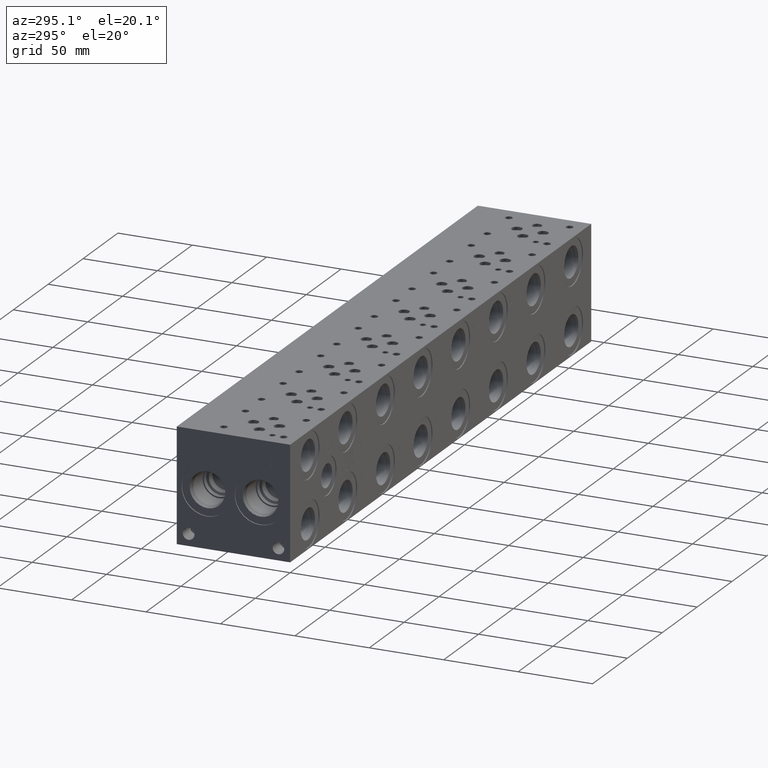
[diagram: clean part render]
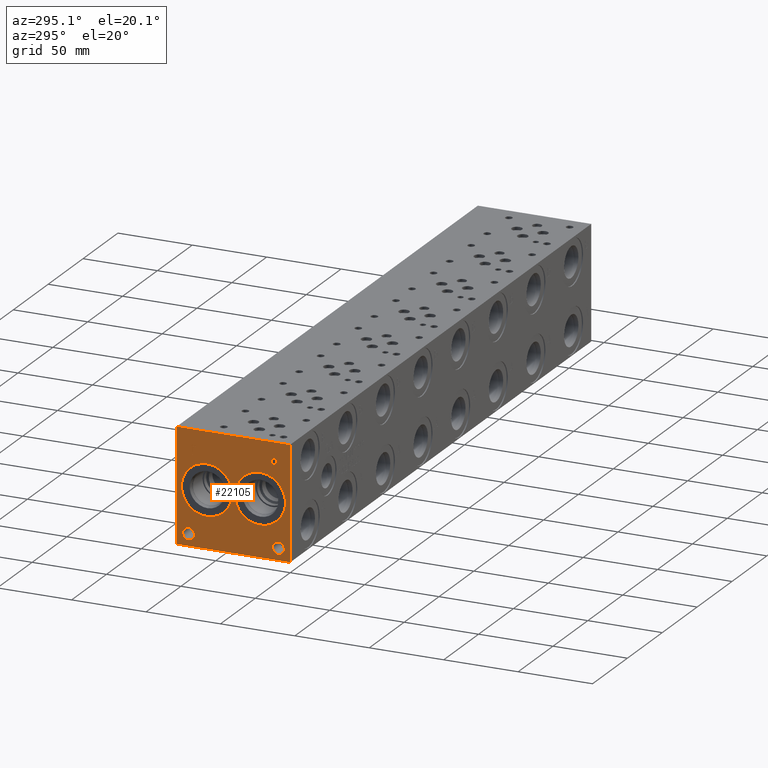
[diagram: same view with one face highlighted and labeled with its STEP entity id]
A machine part, auxiliary view. The second image highlights one B-rep face of the part: STEP entity #22105.
In plain terms, the highlighted planar face has unit normal (-1, 0, 0).
Its self-contained STEP definition (entity closure, byte-faithful):
#433=CIRCLE('',#23092,17.0688);
#434=CIRCLE('',#23093,17.0688);
#435=CIRCLE('',#23094,17.0688);
#436=CIRCLE('',#23095,17.0688);
#437=CIRCLE('',#23096,3.9624);
#438=CIRCLE('',#23097,3.9624);
#439=CIRCLE('',#23098,3.9624);
#440=CIRCLE('',#23099,3.9624);
#1301=FACE_BOUND('',#4005,.T.);
#1302=FACE_BOUND('',#4006,.T.);
#1303=FACE_BOUND('',#4007,.T.);
#1304=FACE_BOUND('',#4008,.T.);
#1305=FACE_BOUND('',#4009,.T.);
#1306=FACE_BOUND('',#4010,.T.);
#1916=PLANE('',#23091);
#2724=FACE_OUTER_BOUND('',#4004,.T.);
#4004=EDGE_LOOP('',(#18015,#18016,#18017,#18018));
#4005=EDGE_LOOP('',(#18019,#18020));
#4006=EDGE_LOOP('',(#18021,#18022));
#4007=EDGE_LOOP('',(#18023,#18024));
#4008=EDGE_LOOP('',(#18025,#18026));
#4009=EDGE_LOOP('',(#18027,#18028,#18029,#18030,#18031,#18032,#18033,#18034));
#4010=EDGE_LOOP('',(#18035,#18036,#18037,#18038,#18039,#18040,#18041,#18042,
#18043));
#4678=LINE('',#29986,#6501);
#6032=LINE('',#36913,#7855);
#6035=LINE('',#36919,#7858);
#6038=LINE('',#36925,#7861);
#6041=LINE('',#36931,#7864);
#6044=LINE('',#36937,#7867);
#6048=LINE('',#36979,#7871);
#6049=LINE('',#36981,#7872);
#6050=LINE('',#36982,#7873);
#6051=LINE('',#37001,#7874);
#6052=LINE('',#37003,#7875);
#6053=LINE('',#37005,#7876);
#6054=LINE('',#37007,#7877);
#6055=LINE('',#37009,#7878);
#6056=LINE('',#37011,#7879);
#6057=LINE('',#37013,#7880);
#6058=LINE('',#37014,#7881);
#6501=VECTOR('',#24408,10.);
#7855=VECTOR('',#26730,10.);
#7858=VECTOR('',#26735,10.);
#7861=VECTOR('',#26740,10.);
#7864=VECTOR('',#26745,10.);
#7867=VECTOR('',#26750,10.);
#7871=VECTOR('',#26758,10.);
#7872=VECTOR('',#26759,10.);
#7873=VECTOR('',#26760,10.);
#7874=VECTOR('',#26777,10.);
#7875=VECTOR('',#26778,10.);
#7876=VECTOR('',#26779,10.);
#7877=VECTOR('',#26780,10.);
#7878=VECTOR('',#26781,10.);
#7879=VECTOR('',#26782,10.);
#7880=VECTOR('',#26783,10.);
#7881=VECTOR('',#26784,10.);
#8779=B_SPLINE_CURVE_WITH_KNOTS('',2,(#36880,#36881,#36882,#36883),
 .UNSPECIFIED.,.F.,.F.,(3,1,3),(0.,1.,2.),.UNSPECIFIED.);
#8781=B_SPLINE_CURVE_WITH_KNOTS('',2,(#36901,#36902,#36903,#36904),
 .UNSPECIFIED.,.F.,.F.,(3,1,3),(0.,1.,2.),.UNSPECIFIED.);
#8783=B_SPLINE_CURVE_WITH_KNOTS('',2,(#36950,#36951,#36952,#36953),
 .UNSPECIFIED.,.F.,.F.,(3,1,3),(0.,1.,2.),.UNSPECIFIED.);
#8785=B_SPLINE_CURVE_WITH_KNOTS('',2,(#36968,#36969,#36970,#36971),
 .UNSPECIFIED.,.F.,.F.,(3,1,3),(0.,1.,2.),.UNSPECIFIED.);
#8835=VERTEX_POINT('',#29979);
#8838=VERTEX_POINT('',#29984);
#10097=VERTEX_POINT('',#36878);
#10098=VERTEX_POINT('',#36879);
#10101=VERTEX_POINT('',#36900);
#10103=VERTEX_POINT('',#36912);
#10105=VERTEX_POINT('',#36918);
#10107=VERTEX_POINT('',#36924);
#10109=VERTEX_POINT('',#36930);
#10111=VERTEX_POINT('',#36936);
#10113=VERTEX_POINT('',#36949);
#10115=VERTEX_POINT('',#36978);
#10116=VERTEX_POINT('',#36980);
#10117=VERTEX_POINT('',#36983);
#10118=VERTEX_POINT('',#36984);
#10119=VERTEX_POINT('',#36987);
#10120=VERTEX_POINT('',#36988);
#10121=VERTEX_POINT('',#36991);
#10122=VERTEX_POINT('',#36992);
#10123=VERTEX_POINT('',#36995);
#10124=VERTEX_POINT('',#36996);
#10125=VERTEX_POINT('',#36999);
#10126=VERTEX_POINT('',#37000);
#10127=VERTEX_POINT('',#37002);
#10128=VERTEX_POINT('',#37004);
#10129=VERTEX_POINT('',#37006);
#10130=VERTEX_POINT('',#37008);
#10131=VERTEX_POINT('',#37010);
#10132=VERTEX_POINT('',#37012);
#11078=EDGE_CURVE('',#8835,#8838,#4678,.T.);
#12945=EDGE_CURVE('',#10097,#10098,#8779,.T.);
#12949=EDGE_CURVE('',#10101,#10097,#8781,.T.);
#12952=EDGE_CURVE('',#10103,#10101,#6032,.T.);
#12955=EDGE_CURVE('',#10105,#10103,#6035,.T.);
#12958=EDGE_CURVE('',#10107,#10105,#6038,.T.);
#12961=EDGE_CURVE('',#10109,#10107,#6041,.T.);
#12964=EDGE_CURVE('',#10111,#10109,#6044,.T.);
#12967=EDGE_CURVE('',#10113,#10111,#8783,.T.);
#12970=EDGE_CURVE('',#10098,#10113,#8785,.T.);
#12972=EDGE_CURVE('',#10115,#8835,#6048,.T.);
#12973=EDGE_CURVE('',#10116,#8838,#6049,.T.);
#12974=EDGE_CURVE('',#10115,#10116,#6050,.T.);
#12975=EDGE_CURVE('',#10117,#10118,#433,.T.);
#12976=EDGE_CURVE('',#10118,#10117,#434,.T.);
#12977=EDGE_CURVE('',#10119,#10120,#435,.T.);
#12978=EDGE_CURVE('',#10120,#10119,#436,.T.);
#12979=EDGE_CURVE('',#10121,#10122,#437,.T.);
#12980=EDGE_CURVE('',#10122,#10121,#438,.T.);
#12981=EDGE_CURVE('',#10123,#10124,#439,.T.);
#12982=EDGE_CURVE('',#10124,#10123,#440,.T.);
#12983=EDGE_CURVE('',#10125,#10126,#6051,.T.);
#12984=EDGE_CURVE('',#10126,#10127,#6052,.T.);
#12985=EDGE_CURVE('',#10127,#10128,#6053,.T.);
#12986=EDGE_CURVE('',#10128,#10129,#6054,.T.);
#12987=EDGE_CURVE('',#10129,#10130,#6055,.T.);
#12988=EDGE_CURVE('',#10130,#10131,#6056,.T.);
#12989=EDGE_CURVE('',#10131,#10132,#6057,.T.);
#12990=EDGE_CURVE('',#10132,#10125,#6058,.T.);
#18015=ORIENTED_EDGE('',*,*,#12972,.T.);
#18016=ORIENTED_EDGE('',*,*,#11078,.T.);
#18017=ORIENTED_EDGE('',*,*,#12973,.F.);
#18018=ORIENTED_EDGE('',*,*,#12974,.F.);
#18019=ORIENTED_EDGE('',*,*,#12975,.T.);
#18020=ORIENTED_EDGE('',*,*,#12976,.T.);
#18021=ORIENTED_EDGE('',*,*,#12977,.T.);
#18022=ORIENTED_EDGE('',*,*,#12978,.T.);
#18023=ORIENTED_EDGE('',*,*,#12979,.T.);
#18024=ORIENTED_EDGE('',*,*,#12980,.T.);
#18025=ORIENTED_EDGE('',*,*,#12981,.T.);
#18026=ORIENTED_EDGE('',*,*,#12982,.T.);
#18027=ORIENTED_EDGE('',*,*,#12983,.T.);
#18028=ORIENTED_EDGE('',*,*,#12984,.T.);
#18029=ORIENTED_EDGE('',*,*,#12985,.T.);
#18030=ORIENTED_EDGE('',*,*,#12986,.T.);
#18031=ORIENTED_EDGE('',*,*,#12987,.T.);
#18032=ORIENTED_EDGE('',*,*,#12988,.T.);
#18033=ORIENTED_EDGE('',*,*,#12989,.T.);
#18034=ORIENTED_EDGE('',*,*,#12990,.T.);
#18035=ORIENTED_EDGE('',*,*,#12945,.T.);
#18036=ORIENTED_EDGE('',*,*,#12970,.T.);
#18037=ORIENTED_EDGE('',*,*,#12967,.T.);
#18038=ORIENTED_EDGE('',*,*,#12964,.T.);
#18039=ORIENTED_EDGE('',*,*,#12961,.T.);
#18040=ORIENTED_EDGE('',*,*,#12958,.T.);
#18041=ORIENTED_EDGE('',*,*,#12955,.T.);
#18042=ORIENTED_EDGE('',*,*,#12952,.T.);
#18043=ORIENTED_EDGE('',*,*,#12949,.T.);
#22105=ADVANCED_FACE('',(#2724,#1301,#1302,#1303,#1304,#1305,#1306),#1916,
 .T.);
#23091=AXIS2_PLACEMENT_3D('',#36977,#26756,#26757);
#23092=AXIS2_PLACEMENT_3D('',#36985,#26761,#26762);
#23093=AXIS2_PLACEMENT_3D('',#36986,#26763,#26764);
#23094=AXIS2_PLACEMENT_3D('',#36989,#26765,#26766);
#23095=AXIS2_PLACEMENT_3D('',#36990,#26767,#26768);
#23096=AXIS2_PLACEMENT_3D('',#36993,#26769,#26770);
#23097=AXIS2_PLACEMENT_3D('',#36994,#26771,#26772);
#23098=AXIS2_PLACEMENT_3D('',#36997,#26773,#26774);
#23099=AXIS2_PLACEMENT_3D('',#36998,#26775,#26776);
#24408=DIRECTION('',(0.,0.,1.));
#26730=DIRECTION('',(0.,-1.,0.));
#26735=DIRECTION('',(0.,-3.14708893596576E-15,1.));
#26740=DIRECTION('',(0.,1.,0.));
#26745=DIRECTION('',(0.,3.75218139805001E-15,-1.));
#26750=DIRECTION('',(0.,1.,0.));
#26756=DIRECTION('center_axis',(-1.,0.,0.));
#26757=DIRECTION('ref_axis',(0.,-1.,0.));
#26758=DIRECTION('',(0.,-1.,0.));
#26759=DIRECTION('',(0.,-1.,0.));
#26760=DIRECTION('',(0.,0.,1.));
#26761=DIRECTION('center_axis',(1.,0.,0.));
#26762=DIRECTION('ref_axis',(0.,0.,1.));
#26763=DIRECTION('center_axis',(1.,0.,0.));
#26764=DIRECTION('ref_axis',(0.,0.,1.));
#26765=DIRECTION('center_axis',(1.,0.,0.));
#26766=DIRECTION('ref_axis',(0.,0.,1.));
#26767=DIRECTION('center_axis',(1.,0.,0.));
#26768=DIRECTION('ref_axis',(0.,0.,1.));
#26769=DIRECTION('center_axis',(1.,0.,0.));
#26770=DIRECTION('ref_axis',(0.,1.,0.));
#26771=DIRECTION('center_axis',(1.,0.,0.));
#26772=DIRECTION('ref_axis',(0.,1.,0.));
#26773=DIRECTION('center_axis',(1.,0.,0.));
#26774=DIRECTION('ref_axis',(0.,1.,0.));
#26775=DIRECTION('center_axis',(1.,0.,0.));
#26776=DIRECTION('ref_axis',(0.,1.,0.));
#26777=DIRECTION('',(0.,1.,1.05244112384329E-14));
#26778=DIRECTION('',(0.,-3.17280044688052E-15,1.));
#26779=DIRECTION('',(0.,1.,4.16909044227779E-15));
#26780=DIRECTION('',(0.,0.,1.));
#26781=DIRECTION('',(0.,-1.,-3.47984565141735E-15));
#26782=DIRECTION('',(0.,0.,-1.));
#26783=DIRECTION('',(0.,1.,0.));
#26784=DIRECTION('',(0.,3.17280044688052E-15,-1.));
#29979=CARTESIAN_POINT('',(0.,0.,0.));
#29984=CARTESIAN_POINT('',(0.,0.,76.2));
#29986=CARTESIAN_POINT('',(0.,0.,0.));
#36878=CARTESIAN_POINT('',(0.,9.59318279764059,65.4850181439707));
#36879=CARTESIAN_POINT('',(0.,8.83674034546799,63.966987372604));
#36880=CARTESIAN_POINT('Ctrl Pts',(0.,9.59318279764059,65.4850181439707));
#36881=CARTESIAN_POINT('Ctrl Pts',(0.,9.23811797315141,65.2431623939564));
#36882=CARTESIAN_POINT('Ctrl Pts',(0.,8.83674034546799,64.4970116758269));
#36883=CARTESIAN_POINT('Ctrl Pts',(0.,8.83674034546799,63.966987372604));
#36900=CARTESIAN_POINT('',(0.,11.2552978456117,65.8812499046326));
#36901=CARTESIAN_POINT('Ctrl Pts',(0.,11.2552978456117,65.8812499046326));
#36902=CARTESIAN_POINT('Ctrl Pts',(0.,10.6892524732376,65.8812499046326));
#36903=CARTESIAN_POINT('Ctrl Pts',(0.,9.89678895191394,65.6959986918556));
#36904=CARTESIAN_POINT('Ctrl Pts',(0.,9.59318279764059,65.4850181439707));
#36912=CARTESIAN_POINT('',(0.,12.8505166223022,65.8812499046326));
#36913=CARTESIAN_POINT('',(0.,44.5252583111511,65.8812499046326));
#36918=CARTESIAN_POINT('',(0.,12.8505166223022,59.53125));
#36919=CARTESIAN_POINT('',(0.,12.8505166223023,29.7656249999999));
#36924=CARTESIAN_POINT('',(0.,12.0065944307627,59.53125));
#36925=CARTESIAN_POINT('',(0.,44.1032972153814,59.53125));
#36930=CARTESIAN_POINT('',(0.,12.0065944307627,61.8983488299279));
#36931=CARTESIAN_POINT('',(0.,12.0065944307628,30.9491744149638));
#36936=CARTESIAN_POINT('',(0.,11.2913189147628,61.8983488299279));
#36937=CARTESIAN_POINT('',(0.,43.7456594573814,61.8983488299279));
#36949=CARTESIAN_POINT('',(0.,9.39249398379889,62.5570198086904));
#36950=CARTESIAN_POINT('Ctrl Pts',(0.,9.39249398379889,62.5570198086904));
#36951=CARTESIAN_POINT('Ctrl Pts',(0.,9.72182947318016,62.2328301863307));
#36952=CARTESIAN_POINT('Ctrl Pts',(0.,10.6120644679139,61.8983488299279));
#36953=CARTESIAN_POINT('Ctrl Pts',(0.,11.2913189147628,61.8983488299279));
#36968=CARTESIAN_POINT('Ctrl Pts',(0.,8.83674034546799,63.966987372604));
#36969=CARTESIAN_POINT('Ctrl Pts',(0.,8.83674034546799,63.5553180108774));
#36970=CARTESIAN_POINT('Ctrl Pts',(0.,9.13005476569819,62.8143131597695));
#36971=CARTESIAN_POINT('Ctrl Pts',(0.,9.39249398379889,62.5570198086904));
#36977=CARTESIAN_POINT('Origin',(0.,76.2,0.));
#36978=CARTESIAN_POINT('',(0.,76.2,0.));
#36979=CARTESIAN_POINT('',(0.,76.2,0.));
#36980=CARTESIAN_POINT('',(0.,76.2,76.2));
#36981=CARTESIAN_POINT('',(0.,76.2,76.2));
#36982=CARTESIAN_POINT('',(0.,76.2,0.));
#36983=CARTESIAN_POINT('',(0.,55.9562,55.1688));
#36984=CARTESIAN_POINT('',(0.,55.9562,21.0312));
#36985=CARTESIAN_POINT('Origin',(0.,55.9562,38.1));
#36986=CARTESIAN_POINT('Origin',(0.,55.9562,38.1));
#36987=CARTESIAN_POINT('',(0.,20.2438,55.1688));
#36988=CARTESIAN_POINT('',(0.,20.2438,21.0312));
#36989=CARTESIAN_POINT('Origin',(0.,20.2438,38.1));
#36990=CARTESIAN_POINT('Origin',(0.,20.2438,38.1));
#36991=CARTESIAN_POINT('',(0.,72.2376,7.92480000000001));
#36992=CARTESIAN_POINT('',(0.,64.3128,7.92480000000001));
#36993=CARTESIAN_POINT('Origin',(0.,68.2752,7.92480000000001));
#36994=CARTESIAN_POINT('Origin',(0.,68.2752,7.92480000000001));
#36995=CARTESIAN_POINT('',(0.,11.8872,7.92480000000001));
#36996=CARTESIAN_POINT('',(0.,3.9624,7.92480000000001));
#36997=CARTESIAN_POINT('Origin',(0.,7.9248,7.92480000000001));
#36998=CARTESIAN_POINT('Origin',(0.,7.9248,7.92480000000001));
#36999=CARTESIAN_POINT('',(0.,65.293334728547,59.53125));
#37000=CARTESIAN_POINT('',(0.,66.1372569200865,59.53125));
#37001=CARTESIAN_POINT('',(0.,70.7466673642732,59.5312500000001));
#37002=CARTESIAN_POINT('',(0.,66.1372569200865,65.1299533194816));
#37003=CARTESIAN_POINT('',(0.,66.1372569200866,29.765625));
#37004=CARTESIAN_POINT('',(0.,68.2676458670216,65.1299533194816));
#37005=CARTESIAN_POINT('',(0.,71.1686284600431,65.1299533194816));
#37006=CARTESIAN_POINT('',(0.,68.2676458670216,65.8812499046326));
#37007=CARTESIAN_POINT('',(0.,68.2676458670216,32.5649766597408));
#37008=CARTESIAN_POINT('',(0.,63.1629457816119,65.8812499046326));
#37009=CARTESIAN_POINT('',(0.,72.2338229335107,65.8812499046326));
#37010=CARTESIAN_POINT('',(0.,63.1629457816119,65.1299533194816));
#37011=CARTESIAN_POINT('',(0.,63.1629457816119,32.9406249523163));
#37012=CARTESIAN_POINT('',(0.,65.293334728547,65.1299533194816));
#37013=CARTESIAN_POINT('',(0.,69.681472890806,65.1299533194816));
#37014=CARTESIAN_POINT('',(0.,65.2933347285471,32.5649766597408));